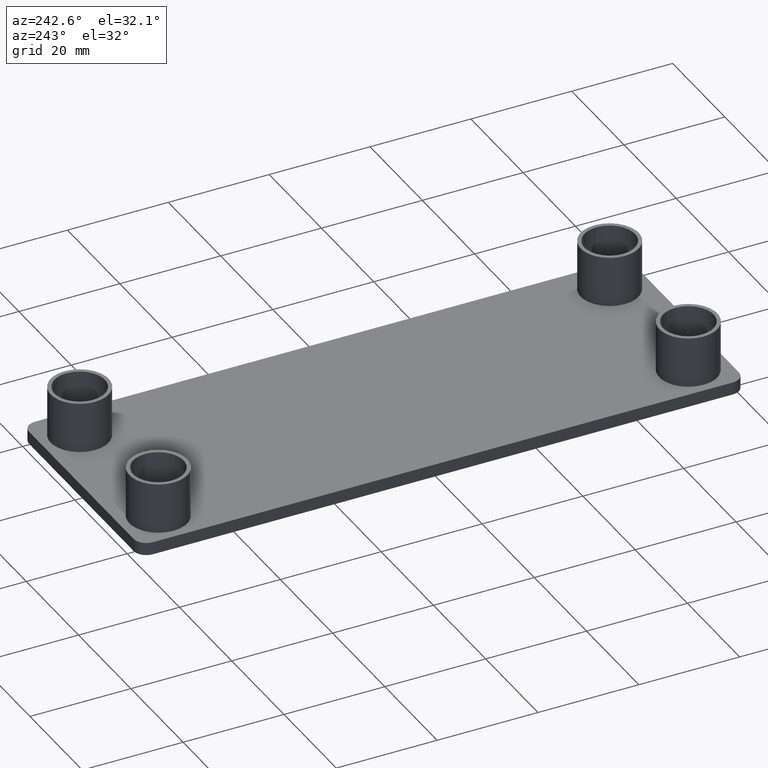
[diagram: clean part render]
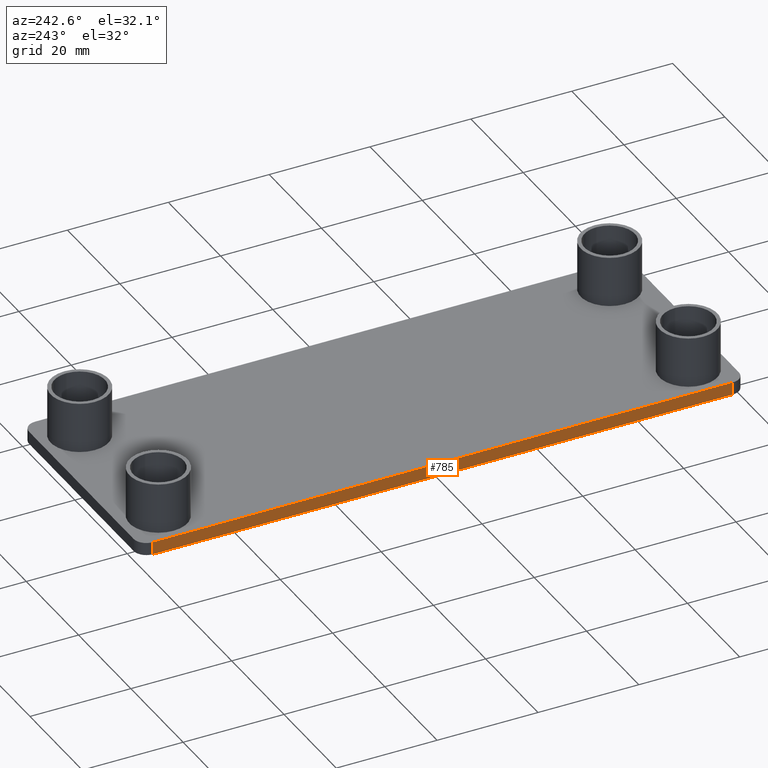
[diagram: same view with one face highlighted and labeled with its STEP entity id]
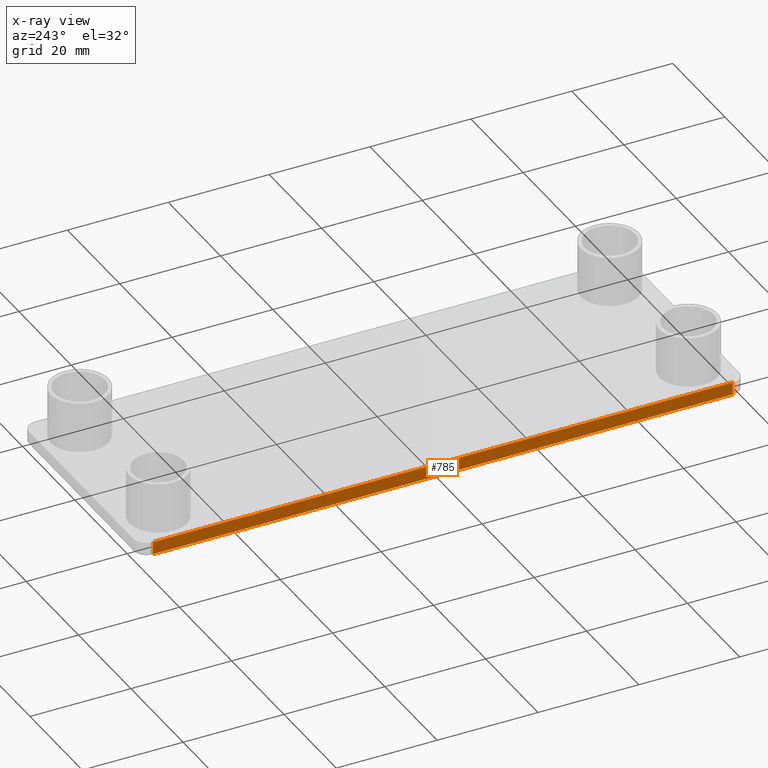
[diagram: x-ray of the same camera — body ghosted, the highlighted face saturated]
A machine part, auxiliary view. The second image highlights one B-rep face of the part: STEP entity #785.
The next image is the same camera in x-ray: the body ghosted, the highlighted face saturated — about 0% of this face is hidden behind the body in this view.
In plain terms, the highlighted planar face has unit normal (1, 0, 0).
Its self-contained STEP definition (entity closure, byte-faithful):
#513=CARTESIAN_POINT('',(-44.999953999819809,-57.500000499759835,-2.500000000000000));
#514=VERTEX_POINT('',#513);
#522=CARTESIAN_POINT('',(-44.999953999819809,57.500000499760063,-2.500000000000000));
#523=VERTEX_POINT('',#522);
#524=CARTESIAN_POINT('',(-44.999953999819809,57.500000499760063,-2.500000000000000));
#525=DIRECTION('',(0.0,-1.0,0.0));
#526=VECTOR('',#525,115.000000999519900);
#527=LINE('',#524,#526);
#528=EDGE_CURVE('',#523,#514,#527,.T.);
#587=CARTESIAN_POINT('',(-44.999953999819809,57.500000499760063,0.0));
#588=VERTEX_POINT('',#587);
#605=CARTESIAN_POINT('',(-44.999953999819809,57.500000499760063,0.0));
#606=DIRECTION('',(0.0,0.0,-1.0));
#607=VECTOR('',#606,2.500000000000000);
#608=LINE('',#605,#607);
#609=EDGE_CURVE('',#588,#523,#608,.T.);
#662=CARTESIAN_POINT('',(-44.999953999819809,-57.500000499759835,0.0));
#663=VERTEX_POINT('',#662);
#664=CARTESIAN_POINT('',(-44.999953999819809,57.500000499760063,0.0));
#665=DIRECTION('',(0.0,-1.0,0.0));
#666=VECTOR('',#665,115.000000999519900);
#667=LINE('',#664,#666);
#668=EDGE_CURVE('',#588,#663,#667,.T.);
#724=CARTESIAN_POINT('',(-44.999953999819809,-57.500000499759835,0.0));
#725=DIRECTION('',(0.0,0.0,-1.0));
#726=VECTOR('',#725,2.500000000000000);
#727=LINE('',#724,#726);
#728=EDGE_CURVE('',#663,#514,#727,.T.);
#774=CARTESIAN_POINT('',(-44.999953999819809,60.000000499760063,0.0));
#775=DIRECTION('',(1.0,0.0,0.0));
#776=DIRECTION('',(0.0,-1.0,0.0));
#777=AXIS2_PLACEMENT_3D('',#774,#775,#776);
#778=PLANE('',#777);
#779=ORIENTED_EDGE('',*,*,#668,.F.);
#780=ORIENTED_EDGE('',*,*,#609,.T.);
#781=ORIENTED_EDGE('',*,*,#528,.T.);
#782=ORIENTED_EDGE('',*,*,#728,.F.);
#783=EDGE_LOOP('',(#779,#780,#781,#782));
#784=FACE_OUTER_BOUND('',#783,.T.);
#785=ADVANCED_FACE('',(#784),#778,.F.);